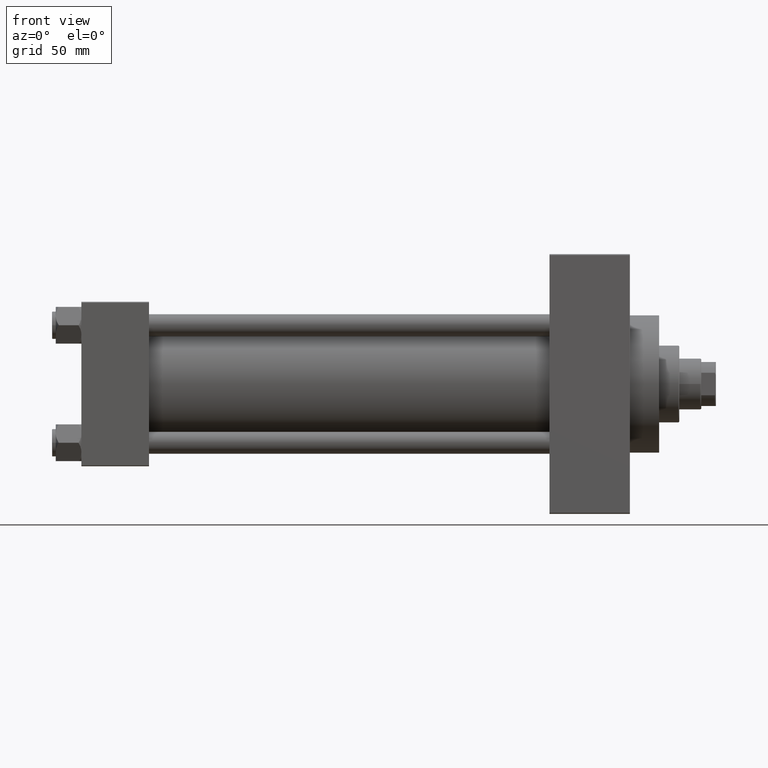
[diagram: clean part render]
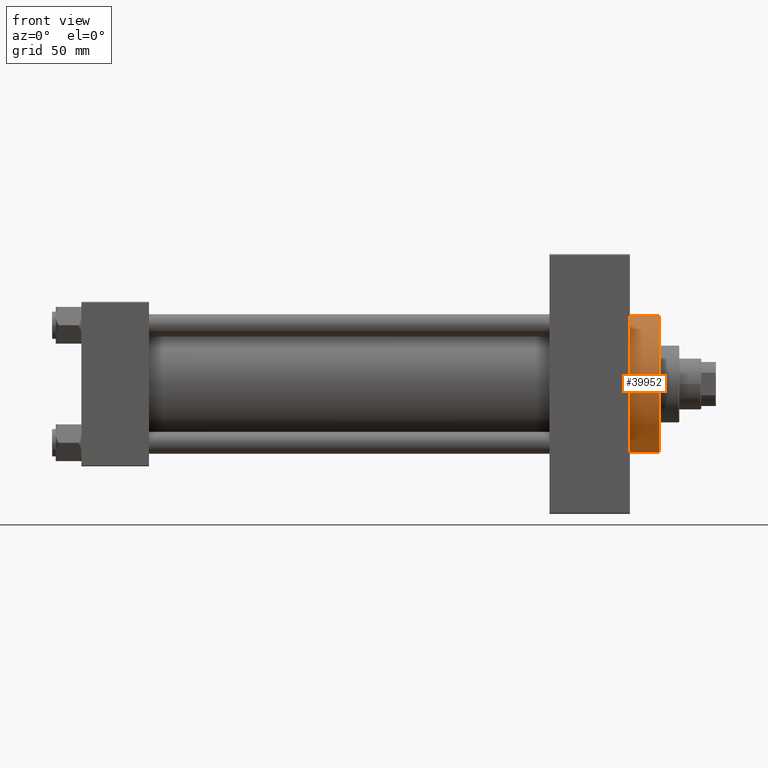
[diagram: same view with one face highlighted and labeled with its STEP entity id]
A machine part, front view. The second image highlights one B-rep face of the part: STEP entity #39952.
In plain terms, the highlighted cylindrical surface (partial cylindrical patch) has radius 37.5 mm, axis along (-1, -0, -0).
Its self-contained STEP definition (entity closure, byte-faithful):
#279 = DIRECTION ( 'NONE',  ( 1.000000000000000000, 0.000000000000000000, 0.000000000000000000 ) ) ;
#307 = CARTESIAN_POINT ( 'NONE',  ( 316.0000000000000000, 0.000000000000000000, 0.000000000000000000 ) ) ;
#502 = LINE ( 'NONE', #10772, #47055 ) ;
#2790 = CIRCLE ( 'NONE', #40940, 37.50000000000000711 ) ;
#3641 = ORIENTED_EDGE ( 'NONE', *, *, #37699, .F. ) ;
#5567 = CARTESIAN_POINT ( 'NONE',  ( 300.0000000000000000, 4.592425496802575156E-15, -37.50000000000000711 ) ) ;
#8054 = CARTESIAN_POINT ( 'NONE',  ( 316.0000000000000000, 0.000000000000000000, 37.50000000000000711 ) ) ;
#8357 = DIRECTION ( 'NONE',  ( 0.000000000000000000, 0.000000000000000000, -1.000000000000000000 ) ) ;
#10772 = CARTESIAN_POINT ( 'NONE',  ( 316.0000000000000000, 0.000000000000000000, 37.50000000000000711 ) ) ;
#11155 = CIRCLE ( 'NONE', #17988, 37.50000000000000711 ) ;
#13591 = DIRECTION ( 'NONE',  ( -1.000000000000000000, -0.000000000000000000, -0.000000000000000000 ) ) ;
#15131 = CARTESIAN_POINT ( 'NONE',  ( 316.0000000000000000, 4.592425496802575156E-15, -37.50000000000000711 ) ) ;
#15314 = CARTESIAN_POINT ( 'NONE',  ( 316.0000000000000000, 0.000000000000000000, 0.000000000000000000 ) ) ;
#15780 = AXIS2_PLACEMENT_3D ( 'NONE', #307, #44684, #29861 ) ;
#17988 = AXIS2_PLACEMENT_3D ( 'NONE', #15314, #279, #33186 ) ;
#20507 = LINE ( 'NONE', #41995, #24597 ) ;
#21722 = DIRECTION ( 'NONE',  ( -1.000000000000000000, -0.000000000000000000, -0.000000000000000000 ) ) ;
#22990 = VERTEX_POINT ( 'NONE', #15131 ) ;
#23128 = DIRECTION ( 'NONE',  ( 1.000000000000000000, 0.000000000000000000, 0.000000000000000000 ) ) ;
#23221 = ORIENTED_EDGE ( 'NONE', *, *, #27745, .F. ) ;
#23264 = EDGE_LOOP ( 'NONE', ( #23221, #3641, #36803, #41272 ) ) ;
#24597 = VECTOR ( 'NONE', #13591, 1000.000000000000000 ) ;
#26014 = CARTESIAN_POINT ( 'NONE',  ( 300.0000000000000000, 0.000000000000000000, 0.000000000000000000 ) ) ;
#26060 = CYLINDRICAL_SURFACE ( 'NONE', #15780, 37.50000000000000711 ) ;
#27745 = EDGE_CURVE ( 'NONE', #22990, #33042, #20507, .T. ) ;
#29861 = DIRECTION ( 'NONE',  ( 0.000000000000000000, 0.000000000000000000, 1.000000000000000000 ) ) ;
#31837 = CARTESIAN_POINT ( 'NONE',  ( 300.0000000000000000, 0.000000000000000000, 37.50000000000000711 ) ) ;
#33042 = VERTEX_POINT ( 'NONE', #5567 ) ;
#33186 = DIRECTION ( 'NONE',  ( 0.000000000000000000, 0.000000000000000000, -1.000000000000000000 ) ) ;
#36755 = VERTEX_POINT ( 'NONE', #31837 ) ;
#36803 = ORIENTED_EDGE ( 'NONE', *, *, #45194, .T. ) ;
#37699 = EDGE_CURVE ( 'NONE', #42450, #22990, #11155, .T. ) ;
#39952 = ADVANCED_FACE ( 'NONE', ( #44222 ), #26060, .T. ) ;
#40940 = AXIS2_PLACEMENT_3D ( 'NONE', #26014, #23128, #8357 ) ;
#41272 = ORIENTED_EDGE ( 'NONE', *, *, #44293, .T. ) ;
#41995 = CARTESIAN_POINT ( 'NONE',  ( 316.0000000000000000, 4.592425496802575156E-15, -37.50000000000000711 ) ) ;
#42450 = VERTEX_POINT ( 'NONE', #8054 ) ;
#44222 = FACE_OUTER_BOUND ( 'NONE', #23264, .T. ) ;
#44293 = EDGE_CURVE ( 'NONE', #36755, #33042, #2790, .T. ) ;
#44684 = DIRECTION ( 'NONE',  ( -1.000000000000000000, -0.000000000000000000, -0.000000000000000000 ) ) ;
#45194 = EDGE_CURVE ( 'NONE', #42450, #36755, #502, .T. ) ;
#47055 = VECTOR ( 'NONE', #21722, 1000.000000000000000 ) ;